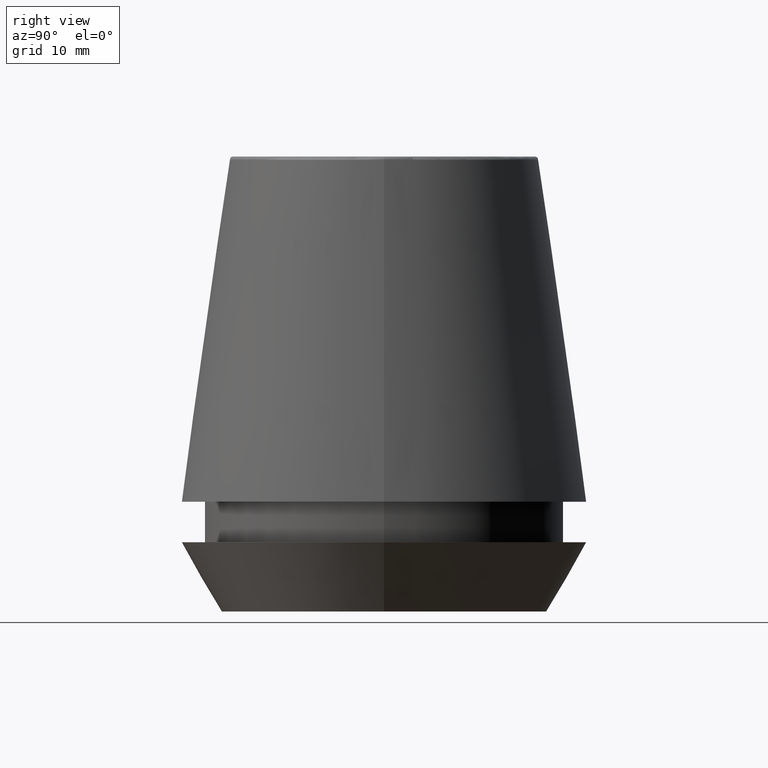
[diagram: clean part render]
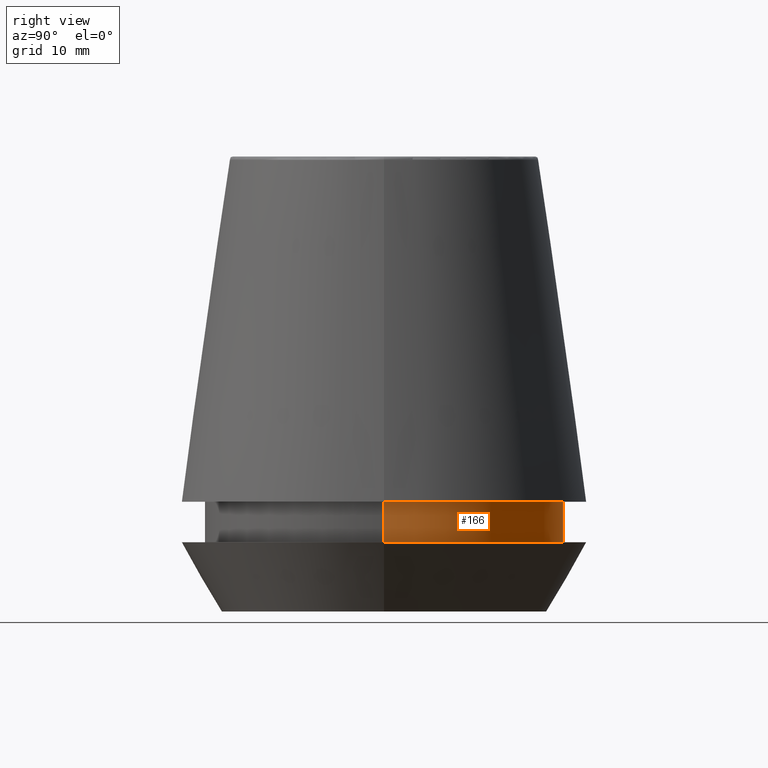
[diagram: same view with one face highlighted and labeled with its STEP entity id]
A machine part, right view. The second image highlights one B-rep face of the part: STEP entity #166.
In plain terms, the highlighted cylindrical surface (partial cylindrical patch) has radius 18.1 mm, axis along (-0, -0, 1).
Its self-contained STEP definition (entity closure, byte-faithful):
#5 = CARTESIAN_POINT ( 'NONE',  ( 18.10000000000000500, 0.0000000000000000000, 11.09999999999999800 ) ) ;
#6 = EDGE_CURVE ( 'NONE', #210, #196, #367, .T. ) ;
#14 = EDGE_CURVE ( 'NONE', #173, #196, #366, .T. ) ;
#19 = CARTESIAN_POINT ( 'NONE',  ( 0.0000000000000000000, 0.0000000000000000000, 11.09999999999999800 ) ) ;
#20 = AXIS2_PLACEMENT_3D ( 'NONE', #199, #130, #344 ) ;
#23 = CARTESIAN_POINT ( 'NONE',  ( -18.10000000000000100, 2.216610706456709600E-015, 6.999999999999999100 ) ) ;
#41 = EDGE_LOOP ( 'NONE', ( #105, #122, #121, #147 ) ) ;
#51 = DIRECTION ( 'NONE',  ( -0.0000000000000000000, -0.0000000000000000000, 1.000000000000000000 ) ) ;
#55 = EDGE_CURVE ( 'NONE', #370, #210, #361, .T. ) ;
#84 = VECTOR ( 'NONE', #99, 1000.000000000000000 ) ;
#99 = DIRECTION ( 'NONE',  ( -0.0000000000000000000, -0.0000000000000000000, 1.000000000000000000 ) ) ;
#105 = ORIENTED_EDGE ( 'NONE', *, *, #345, .T. ) ;
#121 = ORIENTED_EDGE ( 'NONE', *, *, #6, .F. ) ;
#122 = ORIENTED_EDGE ( 'NONE', *, *, #14, .T. ) ;
#124 = DIRECTION ( 'NONE',  ( 1.000000000000000000, 0.0000000000000000000, 0.0000000000000000000 ) ) ;
#130 = DIRECTION ( 'NONE',  ( -0.0000000000000000000, -0.0000000000000000000, 1.000000000000000000 ) ) ;
#141 = CARTESIAN_POINT ( 'NONE',  ( -18.10000000000000500, 2.216610706456710000E-015, 11.09999999999999800 ) ) ;
#147 = ORIENTED_EDGE ( 'NONE', *, *, #55, .F. ) ;
#154 = DIRECTION ( 'NONE',  ( -0.0000000000000000000, -0.0000000000000000000, 1.000000000000000000 ) ) ;
#159 = AXIS2_PLACEMENT_3D ( 'NONE', #19, #154, #124 ) ;
#166 = ADVANCED_FACE ( 'NONE', ( #296 ), #270, .T. ) ;
#172 = AXIS2_PLACEMENT_3D ( 'NONE', #263, #299, #211 ) ;
#173 = VERTEX_POINT ( 'NONE', #23 ) ;
#180 = CARTESIAN_POINT ( 'NONE',  ( -18.10000000000000500, 2.216610706456710000E-015, 46.00000000000000000 ) ) ;
#196 = VERTEX_POINT ( 'NONE', #141 ) ;
#199 = CARTESIAN_POINT ( 'NONE',  ( 0.0000000000000000000, 0.0000000000000000000, 46.00000000000000000 ) ) ;
#210 = VERTEX_POINT ( 'NONE', #5 ) ;
#211 = DIRECTION ( 'NONE',  ( 1.000000000000000000, 0.0000000000000000000, 0.0000000000000000000 ) ) ;
#244 = CIRCLE ( 'NONE', #172, 18.10000000000000100 ) ;
#263 = CARTESIAN_POINT ( 'NONE',  ( 0.0000000000000000000, 0.0000000000000000000, 6.999999999999999100 ) ) ;
#270 = CYLINDRICAL_SURFACE ( 'NONE', #20, 18.10000000000000500 ) ;
#296 = FACE_OUTER_BOUND ( 'NONE', #41, .T. ) ;
#299 = DIRECTION ( 'NONE',  ( -0.0000000000000000000, -0.0000000000000000000, 1.000000000000000000 ) ) ;
#316 = VECTOR ( 'NONE', #51, 1000.000000000000000 ) ;
#344 = DIRECTION ( 'NONE',  ( 1.000000000000000000, 0.0000000000000000000, 0.0000000000000000000 ) ) ;
#345 = EDGE_CURVE ( 'NONE', #370, #173, #244, .T. ) ;
#361 = LINE ( 'NONE', #379, #316 ) ;
#364 = CARTESIAN_POINT ( 'NONE',  ( 18.10000000000000100, 0.0000000000000000000, 6.999999999999999100 ) ) ;
#366 = LINE ( 'NONE', #180, #84 ) ;
#367 = CIRCLE ( 'NONE', #159, 18.10000000000000500 ) ;
#370 = VERTEX_POINT ( 'NONE', #364 ) ;
#379 = CARTESIAN_POINT ( 'NONE',  ( 18.10000000000000500, 0.0000000000000000000, 46.00000000000000000 ) ) ;